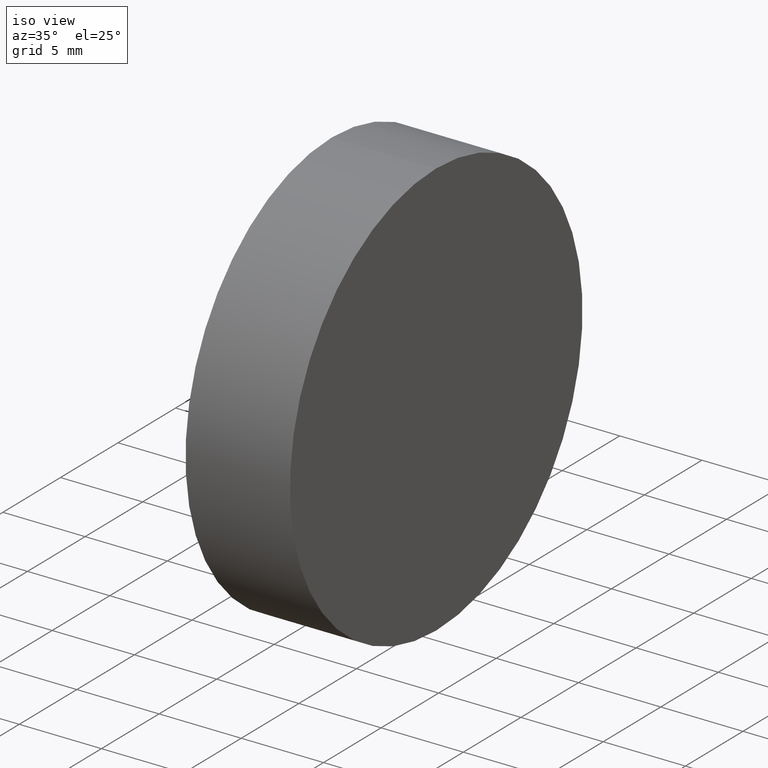
[diagram: clean part render]
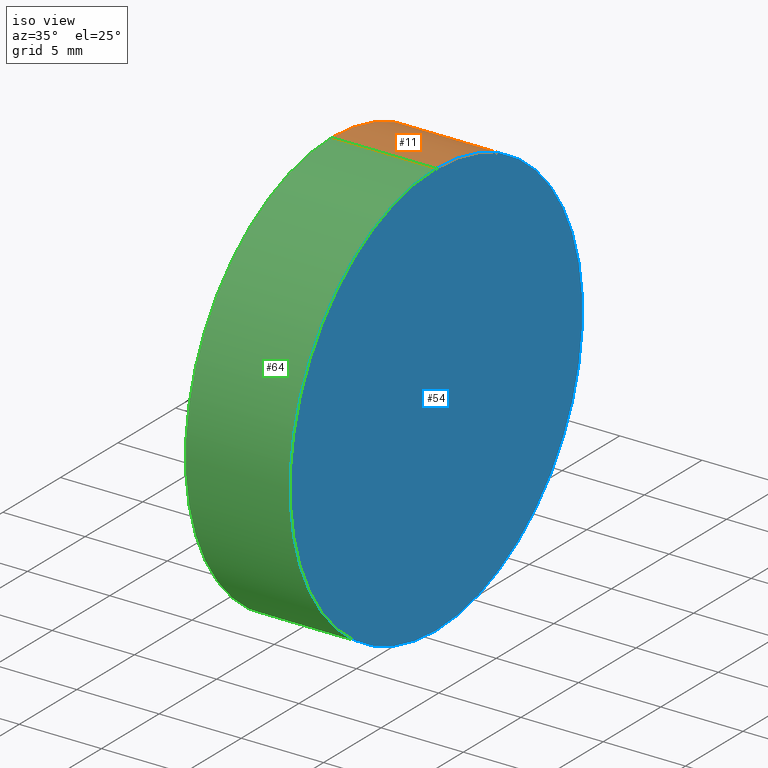
[diagram: same view with three faces highlighted in distinct colors, each labeled with its STEP entity id]
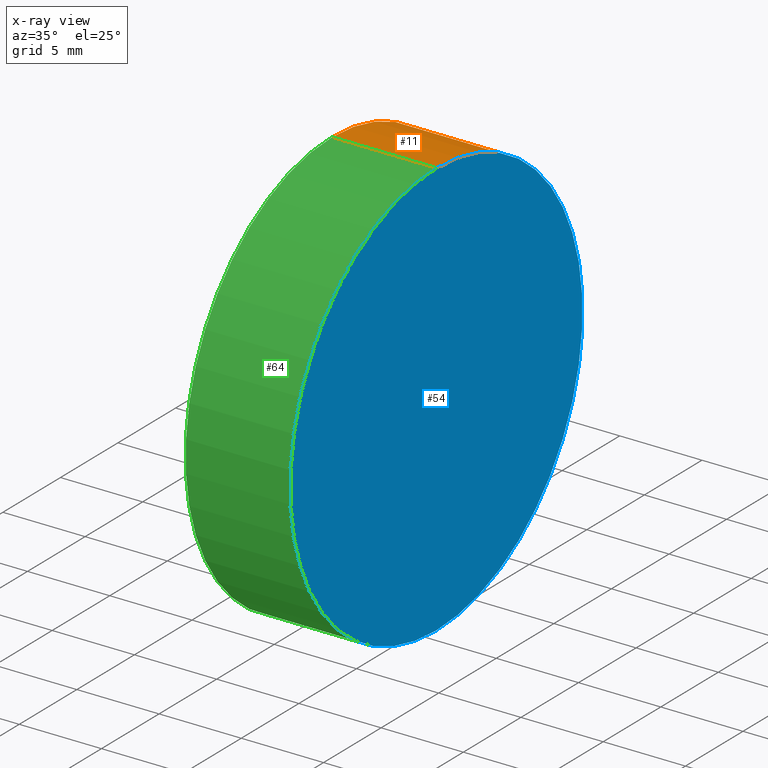
[diagram: x-ray of the same camera — body ghosted, the three highlighted faces saturated]
A machine part, iso view with three faces highlighted in distinct colors.
The next image is the same camera in x-ray (body ghosted, the three faces saturated) — at least one of them is partly hidden behind the body in this view.
Their STEP definitions:

[orange] entity #11 — the highlighted cylindrical surface (partial cylindrical patch) has radius 12.7 mm, axis along (-1, -0, -0).
#6 = VERTEX_POINT ( 'NONE', #117 ) ;
#7 = DIRECTION ( 'NONE',  ( 0.0000000000000000000, 0.0000000000000000000, 1.000000000000000000 ) ) ;
#8 = LINE ( 'NONE', #132, #63 ) ;
#11 = ADVANCED_FACE ( 'NONE', ( #56 ), #51, .T. ) ;
#12 = EDGE_CURVE ( 'NONE', #128, #6, #124, .T. ) ;
#13 = LINE ( 'NONE', #123, #118 ) ;
#14 = AXIS2_PLACEMENT_3D ( 'NONE', #115, #53, #73 ) ;
#22 = CARTESIAN_POINT ( 'NONE',  ( 1.734723475976807100E-015, 0.0000000000000000000, 0.0000000000000000000 ) ) ;
#29 = CARTESIAN_POINT ( 'NONE',  ( 1.734723475976807100E-015, 0.0000000000000000000, 12.69999999999999900 ) ) ;
#33 = ORIENTED_EDGE ( 'NONE', *, *, #127, .F. ) ;
#42 = DIRECTION ( 'NONE',  ( -1.000000000000000000, -0.0000000000000000000, -0.0000000000000000000 ) ) ;
#51 = CYLINDRICAL_SURFACE ( 'NONE', #14, 12.69999999999999900 ) ;
#53 = DIRECTION ( 'NONE',  ( -1.000000000000000000, -0.0000000000000000000, -0.0000000000000000000 ) ) ;
#56 = FACE_OUTER_BOUND ( 'NONE', #75, .T. ) ;
#58 = CARTESIAN_POINT ( 'NONE',  ( 6.349999999999997000, 1.555301434917138800E-015, -12.70000000000000300 ) ) ;
#59 = DIRECTION ( 'NONE',  ( -1.000000000000000000, -0.0000000000000000000, -0.0000000000000000000 ) ) ;
#62 = ORIENTED_EDGE ( 'NONE', *, *, #12, .F. ) ;
#63 = VECTOR ( 'NONE', #121, 1000.000000000000000 ) ;
#66 = CIRCLE ( 'NONE', #107, 12.70000000000000100 ) ;
#73 = DIRECTION ( 'NONE',  ( 0.0000000000000000000, 0.0000000000000000000, 1.000000000000000000 ) ) ;
#75 = EDGE_LOOP ( 'NONE', ( #139, #97, #62, #33 ) ) ;
#85 = DIRECTION ( 'NONE',  ( -1.000000000000000000, -0.0000000000000000000, -0.0000000000000000000 ) ) ;
#88 = VERTEX_POINT ( 'NONE', #103 ) ;
#97 = ORIENTED_EDGE ( 'NONE', *, *, #122, .T. ) ;
#101 = DIRECTION ( 'NONE',  ( 0.0000000000000000000, 0.0000000000000000000, 1.000000000000000000 ) ) ;
#103 = CARTESIAN_POINT ( 'NONE',  ( 6.349999999999997000, 0.0000000000000000000, 12.70000000000000100 ) ) ;
#107 = AXIS2_PLACEMENT_3D ( 'NONE', #112, #42, #101 ) ;
#109 = EDGE_CURVE ( 'NONE', #88, #135, #66, .T. ) ;
#112 = CARTESIAN_POINT ( 'NONE',  ( 6.349999999999997000, 0.0000000000000000000, 0.0000000000000000000 ) ) ;
#115 = CARTESIAN_POINT ( 'NONE',  ( -5.443049946215309900, 0.0000000000000000000, 0.0000000000000000000 ) ) ;
#117 = CARTESIAN_POINT ( 'NONE',  ( 1.734723475976807100E-015, 1.555301434917138400E-015, -12.69999999999999900 ) ) ;
#118 = VECTOR ( 'NONE', #59, 1000.000000000000000 ) ;
#121 = DIRECTION ( 'NONE',  ( -1.000000000000000000, -0.0000000000000000000, -0.0000000000000000000 ) ) ;
#122 = EDGE_CURVE ( 'NONE', #135, #6, #13, .T. ) ;
#123 = CARTESIAN_POINT ( 'NONE',  ( -5.443049946215309900, 1.555301434917138400E-015, -12.69999999999999900 ) ) ;
#124 = CIRCLE ( 'NONE', #137, 12.69999999999999900 ) ;
#127 = EDGE_CURVE ( 'NONE', #88, #128, #8, .T. ) ;
#128 = VERTEX_POINT ( 'NONE', #29 ) ;
#132 = CARTESIAN_POINT ( 'NONE',  ( -5.443049946215309900, 0.0000000000000000000, 12.69999999999999900 ) ) ;
#135 = VERTEX_POINT ( 'NONE', #58 ) ;
#137 = AXIS2_PLACEMENT_3D ( 'NONE', #22, #85, #7 ) ;
#139 = ORIENTED_EDGE ( 'NONE', *, *, #109, .T. ) ;

[blue] entity #54 — the highlighted planar face has unit normal (1, 0, 0).
#15 = EDGE_LOOP ( 'NONE', ( #98, #65 ) ) ;
#20 = DIRECTION ( 'NONE',  ( 0.0000000000000000000, 0.0000000000000000000, 1.000000000000000000 ) ) ;
#30 = AXIS2_PLACEMENT_3D ( 'NONE', #46, #72, #134 ) ;
#31 = CARTESIAN_POINT ( 'NONE',  ( 6.349999999999997000, 0.0000000000000000000, 0.0000000000000000000 ) ) ;
#35 = AXIS2_PLACEMENT_3D ( 'NONE', #31, #92, #20 ) ;
#42 = DIRECTION ( 'NONE',  ( -1.000000000000000000, -0.0000000000000000000, -0.0000000000000000000 ) ) ;
#46 = CARTESIAN_POINT ( 'NONE',  ( 6.349999999999998800, 0.0000000000000000000, 0.0000000000000000000 ) ) ;
#54 = ADVANCED_FACE ( 'NONE', ( #55 ), #104, .T. ) ;
#55 = FACE_OUTER_BOUND ( 'NONE', #15, .T. ) ;
#58 = CARTESIAN_POINT ( 'NONE',  ( 6.349999999999997000, 1.555301434917138800E-015, -12.70000000000000300 ) ) ;
#65 = ORIENTED_EDGE ( 'NONE', *, *, #100, .F. ) ;
#66 = CIRCLE ( 'NONE', #107, 12.70000000000000100 ) ;
#72 = DIRECTION ( 'NONE',  ( 1.000000000000000000, 0.0000000000000000000, 0.0000000000000000000 ) ) ;
#88 = VERTEX_POINT ( 'NONE', #103 ) ;
#92 = DIRECTION ( 'NONE',  ( -1.000000000000000000, -0.0000000000000000000, -0.0000000000000000000 ) ) ;
#98 = ORIENTED_EDGE ( 'NONE', *, *, #109, .F. ) ;
#100 = EDGE_CURVE ( 'NONE', #135, #88, #119, .T. ) ;
#101 = DIRECTION ( 'NONE',  ( 0.0000000000000000000, 0.0000000000000000000, 1.000000000000000000 ) ) ;
#103 = CARTESIAN_POINT ( 'NONE',  ( 6.349999999999997000, 0.0000000000000000000, 12.70000000000000100 ) ) ;
#104 = PLANE ( 'NONE',  #30 ) ;
#107 = AXIS2_PLACEMENT_3D ( 'NONE', #112, #42, #101 ) ;
#109 = EDGE_CURVE ( 'NONE', #88, #135, #66, .T. ) ;
#112 = CARTESIAN_POINT ( 'NONE',  ( 6.349999999999997000, 0.0000000000000000000, 0.0000000000000000000 ) ) ;
#119 = CIRCLE ( 'NONE', #35, 12.70000000000000100 ) ;
#134 = DIRECTION ( 'NONE',  ( 0.0000000000000000000, 0.0000000000000000000, -1.000000000000000000 ) ) ;
#135 = VERTEX_POINT ( 'NONE', #58 ) ;

[green] entity #64 — the highlighted cylindrical surface (partial cylindrical patch) has radius 12.7 mm, axis along (-1, -0, -0).
#3 = DIRECTION ( 'NONE',  ( 0.0000000000000000000, 0.0000000000000000000, 1.000000000000000000 ) ) ;
#6 = VERTEX_POINT ( 'NONE', #117 ) ;
#8 = LINE ( 'NONE', #132, #63 ) ;
#13 = LINE ( 'NONE', #123, #118 ) ;
#17 = AXIS2_PLACEMENT_3D ( 'NONE', #19, #82, #3 ) ;
#19 = CARTESIAN_POINT ( 'NONE',  ( 1.734723475976807100E-015, 0.0000000000000000000, 0.0000000000000000000 ) ) ;
#20 = DIRECTION ( 'NONE',  ( 0.0000000000000000000, 0.0000000000000000000, 1.000000000000000000 ) ) ;
#24 = ORIENTED_EDGE ( 'NONE', *, *, #122, .F. ) ;
#29 = CARTESIAN_POINT ( 'NONE',  ( 1.734723475976807100E-015, 0.0000000000000000000, 12.69999999999999900 ) ) ;
#31 = CARTESIAN_POINT ( 'NONE',  ( 6.349999999999997000, 0.0000000000000000000, 0.0000000000000000000 ) ) ;
#34 = AXIS2_PLACEMENT_3D ( 'NONE', #125, #50, #61 ) ;
#35 = AXIS2_PLACEMENT_3D ( 'NONE', #31, #92, #20 ) ;
#50 = DIRECTION ( 'NONE',  ( -1.000000000000000000, -0.0000000000000000000, -0.0000000000000000000 ) ) ;
#58 = CARTESIAN_POINT ( 'NONE',  ( 6.349999999999997000, 1.555301434917138800E-015, -12.70000000000000300 ) ) ;
#59 = DIRECTION ( 'NONE',  ( -1.000000000000000000, -0.0000000000000000000, -0.0000000000000000000 ) ) ;
#61 = DIRECTION ( 'NONE',  ( 0.0000000000000000000, 0.0000000000000000000, 1.000000000000000000 ) ) ;
#63 = VECTOR ( 'NONE', #121, 1000.000000000000000 ) ;
#64 = ADVANCED_FACE ( 'NONE', ( #108 ), #77, .T. ) ;
#77 = CYLINDRICAL_SURFACE ( 'NONE', #34, 12.69999999999999900 ) ;
#78 = ORIENTED_EDGE ( 'NONE', *, *, #100, .T. ) ;
#80 = EDGE_LOOP ( 'NONE', ( #24, #78, #86, #102 ) ) ;
#82 = DIRECTION ( 'NONE',  ( -1.000000000000000000, -0.0000000000000000000, -0.0000000000000000000 ) ) ;
#86 = ORIENTED_EDGE ( 'NONE', *, *, #127, .T. ) ;
#88 = VERTEX_POINT ( 'NONE', #103 ) ;
#92 = DIRECTION ( 'NONE',  ( -1.000000000000000000, -0.0000000000000000000, -0.0000000000000000000 ) ) ;
#94 = CIRCLE ( 'NONE', #17, 12.69999999999999900 ) ;
#100 = EDGE_CURVE ( 'NONE', #135, #88, #119, .T. ) ;
#102 = ORIENTED_EDGE ( 'NONE', *, *, #116, .F. ) ;
#103 = CARTESIAN_POINT ( 'NONE',  ( 6.349999999999997000, 0.0000000000000000000, 12.70000000000000100 ) ) ;
#108 = FACE_OUTER_BOUND ( 'NONE', #80, .T. ) ;
#116 = EDGE_CURVE ( 'NONE', #6, #128, #94, .T. ) ;
#117 = CARTESIAN_POINT ( 'NONE',  ( 1.734723475976807100E-015, 1.555301434917138400E-015, -12.69999999999999900 ) ) ;
#118 = VECTOR ( 'NONE', #59, 1000.000000000000000 ) ;
#119 = CIRCLE ( 'NONE', #35, 12.70000000000000100 ) ;
#121 = DIRECTION ( 'NONE',  ( -1.000000000000000000, -0.0000000000000000000, -0.0000000000000000000 ) ) ;
#122 = EDGE_CURVE ( 'NONE', #135, #6, #13, .T. ) ;
#123 = CARTESIAN_POINT ( 'NONE',  ( -5.443049946215309900, 1.555301434917138400E-015, -12.69999999999999900 ) ) ;
#125 = CARTESIAN_POINT ( 'NONE',  ( -5.443049946215309900, 0.0000000000000000000, 0.0000000000000000000 ) ) ;
#127 = EDGE_CURVE ( 'NONE', #88, #128, #8, .T. ) ;
#128 = VERTEX_POINT ( 'NONE', #29 ) ;
#132 = CARTESIAN_POINT ( 'NONE',  ( -5.443049946215309900, 0.0000000000000000000, 12.69999999999999900 ) ) ;
#135 = VERTEX_POINT ( 'NONE', #58 ) ;